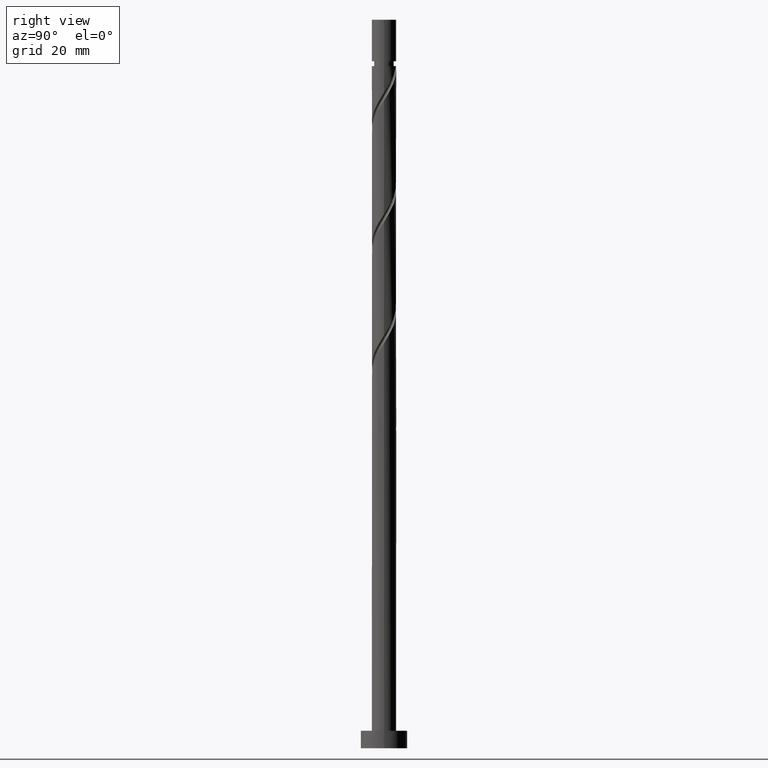
[diagram: clean part render]
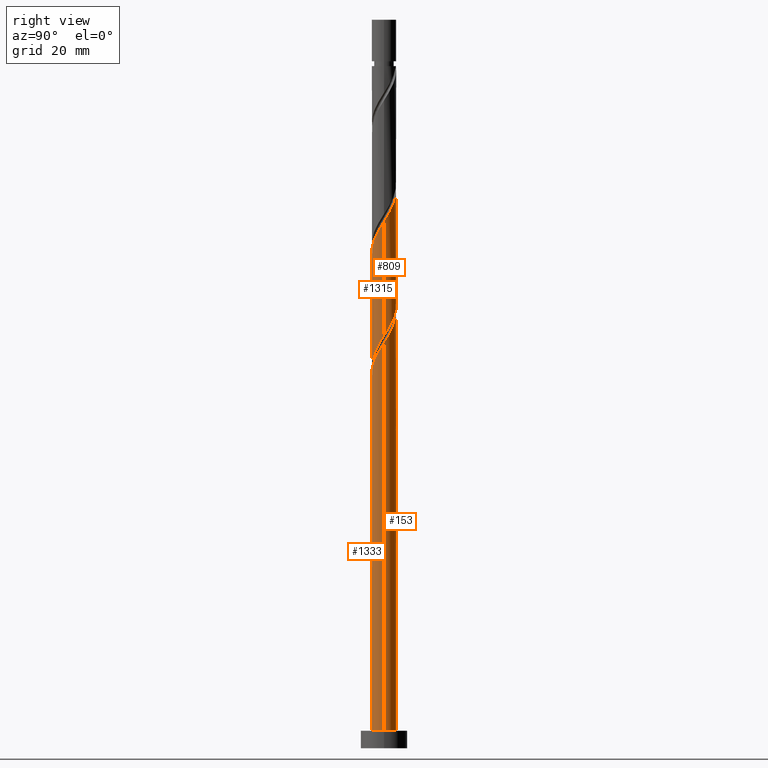
[diagram: same view with one multi-face feature highlighted, each face labeled with its STEP entity id]
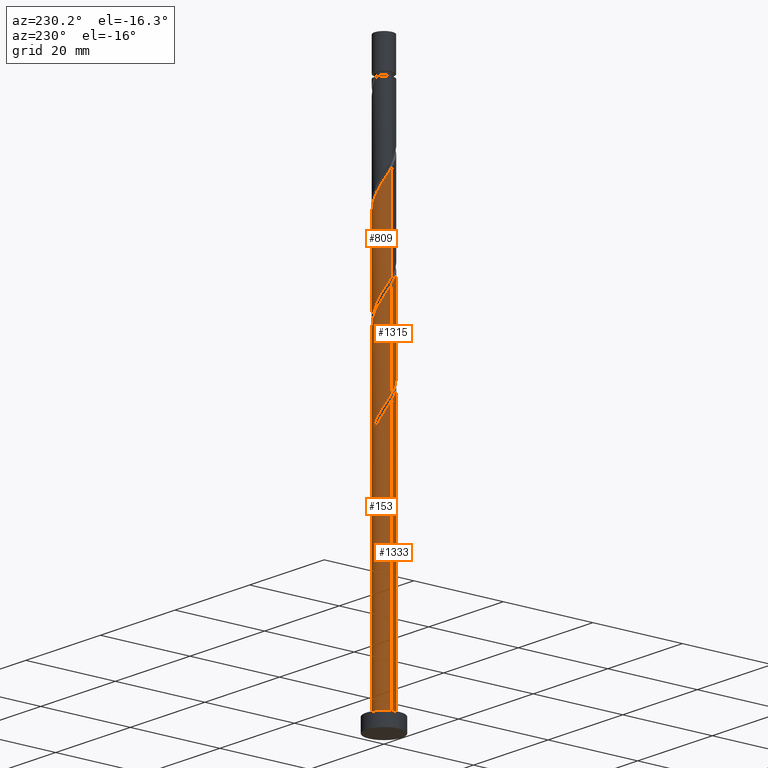
[diagram: same view with one multi-face feature highlighted, each face labeled with its STEP entity id]
A machine part, right view. The highlighted faces form ONE feature: a constant-radius fillet chain: 4 tangent blend faces with common blend radius 2.1 mm. The faces share edges in the B-rep.
A second angle (auxiliary view) of the same feature is appended — it is thin or edge-on in the first view.
Their STEP definitions:
[1] entity #1333 (Cylinder):
#13 = CARTESIAN_POINT ( 'NONE',  ( 2.048633742055939955, -0.5689704942628347473, 68.60996050600309104 ) ) ;
#81 = CARTESIAN_POINT ( 'NONE',  ( 2.100000000000000089, 2.571758278209441464E-16, 125.0000000000000000 ) ) ;
#96 = CARTESIAN_POINT ( 'NONE',  ( -0.8715781159782031162, -1.910589329957617766, 62.88079383933644095 ) ) ;
#133 = CYLINDRICAL_SURFACE ( 'NONE', #251, 2.100000000000000089 ) ;
#137 = CARTESIAN_POINT ( 'NONE',  ( 2.086410881982748045, -0.2385154744329752163, 69.13079383933644806 ) ) ;
#139 =( BOUNDED_CURVE ( )  B_SPLINE_CURVE ( 2, ( #457, #780, #1274, #225, #429, #527, #1258, #990, #96, #1418, #879, #1359, #303, #1251, #827, #1403, #770, #1260, #262, #13, #137, #1173, #196 ),
 .UNSPECIFIED., .F., .T. ) 
 B_SPLINE_CURVE_WITH_KNOTS ( ( 3, 2, 2, 2, 2, 2, 2, 2, 2, 2, 2, 3 ),
 ( 0.05453220231385526307, 0.06250000000000000000, 0.07499999999999995559, 0.08750000000000002220, 0.09999999999999997780, 0.1125000000000000444, 0.1250000000000000000, 0.1374999999999999556, 0.1500000000000000222, 0.1624999999999999778, 0.1750000000000000444, 0.1795322023138549994 ),
 .UNSPECIFIED. ) 
 CURVE ( )  GEOMETRIC_REPRESENTATION_ITEM ( )  RATIONAL_B_SPLINE_CURVE ( ( 0.9039174447099406207, 0.9019565955404700297, 0.9090909090909183865, 0.8978984914501343395, 0.9090909090909183865, 0.8978984914501343395, 0.9090909090909183865, 0.8978984914501343395, 0.9090909090909183865, 0.8978984914501343395, 0.9090909090909183865, 0.8978984914501343395, 0.9090909090909183865, 0.8978984914501343395, 0.9090909090909183865, 0.8978984914501343395, 0.9090909090909183865, 0.8978984914501343395, 0.9090909090909183865, 0.8978984914501343395, 0.9090909090909183865, 0.9050328050005829184, 0.9039174447099407317 ) ) 
 REPRESENTATION_ITEM ( '' )  );
#178 = CARTESIAN_POINT ( 'NONE',  ( 2.100000000000003197, 1.739199922851862487E-15, 69.50765806453284767 ) ) ;
#196 = CARTESIAN_POINT ( 'NONE',  ( 2.100000000000003197, 1.739199922851862487E-15, 69.50765806453286189 ) ) ;
#225 = CARTESIAN_POINT ( 'NONE',  ( -1.991811978090451074, -0.7438499017726768470, 60.27662717266978376 ) ) ;
#228 = CARTESIAN_POINT ( 'NONE',  ( 2.100000000000000089, 2.571758278209441464E-16, 3.000000000000000000 ) ) ;
#251 = AXIS2_PLACEMENT_3D ( 'NONE', #502, #1457, #846 ) ;
#262 = CARTESIAN_POINT ( 'NONE',  ( 1.910589329957617766, -0.8715781159782031162, 68.08912717266973402 ) ) ;
#303 = CARTESIAN_POINT ( 'NONE',  ( 0.4178947235847805808, -2.058000000000002938, 64.96412717266976244 ) ) ;
#339 = LINE ( 'NONE', #81, #1514 ) ;
#356 = ORIENTED_EDGE ( 'NONE', *, *, #1002, .T. ) ;
#429 = CARTESIAN_POINT ( 'NONE',  ( -1.828137739088110392, -1.033398474414310320, 60.79746050600309815 ) ) ;
#446 = CIRCLE ( 'NONE', #1321, 2.100000000000000089 ) ;
#453 = EDGE_CURVE ( 'NONE', #735, #483, #339, .T. ) ;
#455 = ORIENTED_EDGE ( 'NONE', *, *, #1450, .T. ) ;
#457 = CARTESIAN_POINT ( 'NONE',  ( -2.100000000000003197, -2.009075772949565392E-15, 59.09099139786618338 ) ) ;
#469 = DIRECTION ( 'NONE',  ( 0.000000000000000000, 0.000000000000000000, 1.000000000000000000 ) ) ;
#483 = VERTEX_POINT ( 'NONE', #228 ) ;
#502 = CARTESIAN_POINT ( 'NONE',  ( 0.000000000000000000, 0.000000000000000000, 125.0000000000000000 ) ) ;
#527 = CARTESIAN_POINT ( 'NONE',  ( -1.664463500085770375, -1.322947047055943903, 61.31829383933644806 ) ) ;
#668 = CARTESIAN_POINT ( 'NONE',  ( 0.000000000000000000, 0.000000000000000000, 3.000000000000000000 ) ) ;
#711 = CARTESIAN_POINT ( 'NONE',  ( -2.100000000000000089, 0.000000000000000000, 3.000000000000000000 ) ) ;
#735 = VERTEX_POINT ( 'NONE', #178 ) ;
#770 = CARTESIAN_POINT ( 'NONE',  ( 1.547745982457619851, -1.419324618889670875, 67.04746050600310525 ) ) ;
#780 = CARTESIAN_POINT ( 'NONE',  ( -2.100000000000002753, -0.2110579412044360781, 59.42529597327402513 ) ) ;
#796 = ORIENTED_EDGE ( 'NONE', *, *, #1398, .F. ) ;
#827 = CARTESIAN_POINT ( 'NONE',  ( 1.033398474414310098, -1.828137739088110392, 66.00579383933643385 ) ) ;
#834 = CARTESIAN_POINT ( 'NONE',  ( -2.100000000000003197, -2.009075772949565392E-15, 59.09099139786617627 ) ) ;
#846 = DIRECTION ( 'NONE',  ( -1.000000000000000000, 0.000000000000000000, 0.000000000000000000 ) ) ;
#879 = CARTESIAN_POINT ( 'NONE',  ( -0.2385154744329751331, -2.086410881982748045, 63.92246050600309815 ) ) ;
#884 = LINE ( 'NONE', #1346, #1394 ) ;
#990 = CARTESIAN_POINT ( 'NONE',  ( -1.174185737693571152, -1.772544917859296465, 62.35996050600311946 ) ) ;
#992 = DIRECTION ( 'NONE',  ( -0.000000000000000000, -0.000000000000000000, -1.000000000000000000 ) ) ;
#1002 = EDGE_CURVE ( 'NONE', #1082, #1178, #884, .T. ) ;
#1069 = EDGE_LOOP ( 'NONE', ( #1452, #796, #356, #455 ) ) ;
#1082 = VERTEX_POINT ( 'NONE', #834 ) ;
#1151 = DIRECTION ( 'NONE',  ( 1.000000000000000000, 0.000000000000000000, 0.000000000000000000 ) ) ;
#1173 = CARTESIAN_POINT ( 'NONE',  ( 2.100000000000002753, -0.1196448486375151915, 69.31814697532554703 ) ) ;
#1178 = VERTEX_POINT ( 'NONE', #711 ) ;
#1208 = FACE_OUTER_BOUND ( 'NONE', #1069, .T. ) ;
#1251 = CARTESIAN_POINT ( 'NONE',  ( 0.7438499017726768470, -1.991811978090451074, 65.48496050600310525 ) ) ;
#1258 = CARTESIAN_POINT ( 'NONE',  ( -1.419324618889670875, -1.547745982457619851, 61.83912717266976955 ) ) ;
#1260 = CARTESIAN_POINT ( 'NONE',  ( 1.772544917859296465, -1.174185737693571152, 67.56829383933644806 ) ) ;
#1274 = CARTESIAN_POINT ( 'NONE',  ( -2.058000000000002938, -0.4178947235847807473, 59.75579383933643385 ) ) ;
#1321 = AXIS2_PLACEMENT_3D ( 'NONE', #668, #469, #1151 ) ;
#1333 = ADVANCED_FACE ( 'NONE', ( #1208 ), #133, .T. ) ;
#1346 = CARTESIAN_POINT ( 'NONE',  ( -2.100000000000000089, 0.000000000000000000, 125.0000000000000000 ) ) ;
#1359 = CARTESIAN_POINT ( 'NONE',  ( 0.09193954539688437011, -2.124188021909556134, 64.44329383933643385 ) ) ;
#1380 = DIRECTION ( 'NONE',  ( -0.000000000000000000, -0.000000000000000000, -1.000000000000000000 ) ) ;
#1394 = VECTOR ( 'NONE', #992, 1000.000000000000000 ) ;
#1398 = EDGE_CURVE ( 'NONE', #1082, #735, #139, .T. ) ;
#1403 = CARTESIAN_POINT ( 'NONE',  ( 1.322947047055943903, -1.664463500085770375, 66.52662717266977666 ) ) ;
#1418 = CARTESIAN_POINT ( 'NONE',  ( -0.5689704942628346362, -2.048633742055939955, 63.40162717266978376 ) ) ;
#1450 = EDGE_CURVE ( 'NONE', #1178, #483, #446, .T. ) ;
#1452 = ORIENTED_EDGE ( 'NONE', *, *, #453, .F. ) ;
#1457 = DIRECTION ( 'NONE',  ( -0.000000000000000000, -0.000000000000000000, -1.000000000000000000 ) ) ;
#1514 = VECTOR ( 'NONE', #1380, 1000.000000000000000 ) ;
[2] entity #153 (Cylinder):
#2 = CARTESIAN_POINT ( 'NONE',  ( 0.4178947235847812469, 2.058000000000001162, 54.54746050600310525 ) ) ;
#15 = ORIENTED_EDGE ( 'NONE', *, *, #1191, .T. ) ;
#18 = CARTESIAN_POINT ( 'NONE',  ( 0.4178947235847811914, 2.058000000000001162, 54.54746050600310525 ) ) ;
#58 = CARTESIAN_POINT ( 'NONE',  ( 0.000000000000000000, 0.000000000000000000, 54.54746050600311946 ) ) ;
#75 = CARTESIAN_POINT ( 'NONE',  ( -1.322947047055943903, 1.664463500085770375, 76.94329383933644806 ) ) ;
#81 = CARTESIAN_POINT ( 'NONE',  ( 2.100000000000000089, 2.571758278209441464E-16, 125.0000000000000000 ) ) ;
#83 = CARTESIAN_POINT ( 'NONE',  ( -2.100000000000000977, 2.488855062012162183E-15, 60.42059628080669853 ) ) ;
#85 = CARTESIAN_POINT ( 'NONE',  ( -2.048633742055939955, 0.5689704942628345252, 79.02662717266977666 ) ) ;
#113 = CARTESIAN_POINT ( 'NONE',  ( -0.2385154744329744114, 2.086410881982745380, 55.58912717266977666 ) ) ;
#122 = CARTESIAN_POINT ( 'NONE',  ( -1.174185737693569154, 1.772544917859294911, 57.15162717266978376 ) ) ;
#128 = CARTESIAN_POINT ( 'NONE',  ( 1.828137739088110392, 1.033398474414310098, 71.21412717266977666 ) ) ;
#153 = ADVANCED_FACE ( 'NONE', ( #340 ), #1149, .T. ) ;
#178 = CARTESIAN_POINT ( 'NONE',  ( 2.100000000000003197, 1.739199922851862487E-15, 69.50765806453284767 ) ) ;
#199 = EDGE_CURVE ( 'NONE', #447, #1040, #355, .T. ) ;
#207 = CARTESIAN_POINT ( 'NONE',  ( 0.000000000000000000, 0.000000000000000000, 3.000000000000000000 ) ) ;
#216 = VERTEX_POINT ( 'NONE', #492 ) ;
#228 = CARTESIAN_POINT ( 'NONE',  ( 2.100000000000000089, 2.571758278209441464E-16, 3.000000000000000000 ) ) ;
#235 = DIRECTION ( 'NONE',  ( 0.000000000000000000, 0.000000000000000000, 1.000000000000000000 ) ) ;
#252 = CARTESIAN_POINT ( 'NONE',  ( 2.100000000000004086, 0.2110579412044288894, 69.84196263994067522 ) ) ;
#283 = CARTESIAN_POINT ( 'NONE',  ( -2.100000000000000977, 2.488855062012162183E-15, 60.42059628080669853 ) ) ;
#332 = DIRECTION ( 'NONE',  ( -1.000000000000000000, 0.000000000000000000, 0.000000000000000000 ) ) ;
#339 = LINE ( 'NONE', #81, #1514 ) ;
#340 = FACE_OUTER_BOUND ( 'NONE', #548, .T. ) ;
#355 =( BOUNDED_CURVE ( )  B_SPLINE_CURVE ( 2, ( #83, #912, #947, #1404, #1532, #1438, #794, #122, #444, #1281, #113, #593, #2 ),
 .UNSPECIFIED., .F., .T. ) 
 B_SPLINE_CURVE_WITH_KNOTS ( ( 3, 2, 2, 2, 2, 2, 3 ),
 ( 0.9295322023138553602, 0.9375000000000000000, 0.9499999999999999556, 0.9625000000000000222, 0.9749999999999999778, 0.9875000000000000444, 1.000000000000000000 ),
 .UNSPECIFIED. ) 
 CURVE ( )  GEOMETRIC_REPRESENTATION_ITEM ( )  RATIONAL_B_SPLINE_CURVE ( ( 0.9039174447099352916, 0.9019565955404648117, 0.9090909090909131685, 0.8978984914501292325, 0.9090909090909131685, 0.8978984914501292325, 0.9090909090909131685, 0.8978984914501292325, 0.9090909090909131685, 0.8978984914501292325, 0.9090909090909131685, 0.8978984914501292325, 0.9090909090909131685 ) ) 
 REPRESENTATION_ITEM ( '' )  );
#370 = ORIENTED_EDGE ( 'NONE', *, *, #1558, .F. ) ;
#382 = CARTESIAN_POINT ( 'NONE',  ( -2.086410881982748045, 0.2385154744329750776, 58.71412717266976244 ) ) ;
#436 = ORIENTED_EDGE ( 'NONE', *, *, #1002, .F. ) ;
#440 = CARTESIAN_POINT ( 'NONE',  ( -1.033398474414310542, 1.828137739088110392, 76.42246050600309104 ) ) ;
#444 = CARTESIAN_POINT ( 'NONE',  ( -0.8715781159782016729, 1.910589329957616211, 56.63079383933643385 ) ) ;
#447 = VERTEX_POINT ( 'NONE', #283 ) ;
#453 = EDGE_CURVE ( 'NONE', #735, #483, #339, .T. ) ;
#454 = CARTESIAN_POINT ( 'NONE',  ( -2.100000000000003197, -2.009075772949565392E-15, 79.92432473119949066 ) ) ;
#464 = CARTESIAN_POINT ( 'NONE',  ( 1.419324618889671097, 1.547745982457619851, 72.25579383933643385 ) ) ;
#477 = CARTESIAN_POINT ( 'NONE',  ( 0.2385154744329754384, 2.086410881982748045, 74.33912717266977666 ) ) ;
#483 = VERTEX_POINT ( 'NONE', #228 ) ;
#492 = CARTESIAN_POINT ( 'NONE',  ( -0.4178947235847804698, 2.058000000000002938, 54.54746050600310525 ) ) ;
#518 = CARTESIAN_POINT ( 'NONE',  ( -0.7438499017726771800, 1.991811978090451074, 55.06829383933644806 ) ) ;
#537 = CARTESIAN_POINT ( 'NONE',  ( -1.772544917859296909, 1.174185737693571152, 57.15162717266976955 ) ) ;
#548 = EDGE_LOOP ( 'NONE', ( #1283, #656, #15, #436, #686, #592, #1526, #370 ) ) ;
#562 = CARTESIAN_POINT ( 'NONE',  ( -2.086410881982748045, 0.2385154744329750776, 79.54746050600310525 ) ) ;
#592 = ORIENTED_EDGE ( 'NONE', *, *, #863, .T. ) ;
#593 = CARTESIAN_POINT ( 'NONE',  ( 0.09193954539688486971, 2.124188021909553026, 55.06829383933644806 ) ) ;
#638 = DIRECTION ( 'NONE',  ( 0.000000000000000000, -8.260587980841937794E-15, -1.000000000000000000 ) ) ;
#656 = ORIENTED_EDGE ( 'NONE', *, *, #453, .T. ) ;
#675 = DIRECTION ( 'NONE',  ( 1.000000000000000000, 0.000000000000000000, 0.000000000000000000 ) ) ;
#680 = CIRCLE ( 'NONE', #960, 2.100000000000000089 ) ;
#686 = ORIENTED_EDGE ( 'NONE', *, *, #1028, .F. ) ;
#697 = CARTESIAN_POINT ( 'NONE',  ( 0.8715781159782032272, 1.910589329957617766, 73.29746050600310525 ) ) ;
#711 = CARTESIAN_POINT ( 'NONE',  ( -2.100000000000000089, 0.000000000000000000, 3.000000000000000000 ) ) ;
#735 = VERTEX_POINT ( 'NONE', #178 ) ;
#779 = CIRCLE ( 'NONE', #1094, 2.100000000000000089 ) ;
#794 = CARTESIAN_POINT ( 'NONE',  ( -1.419324618889668654, 1.547745982457618963, 57.67246050600311236 ) ) ;
#834 = CARTESIAN_POINT ( 'NONE',  ( -2.100000000000003197, -2.009075772949565392E-15, 59.09099139786617627 ) ) ;
#863 = EDGE_CURVE ( 'NONE', #216, #1040, #779, .T. ) ;
#877 =( BOUNDED_CURVE ( )  B_SPLINE_CURVE ( 2, ( #1353, #518, #983, #1074, #1368, #537, #1442, #1462, #382, #1237, #1574 ),
 .UNSPECIFIED., .F., .T. ) 
 B_SPLINE_CURVE_WITH_KNOTS ( ( 3, 2, 2, 2, 2, 3 ),
 ( 0.000000000000000000, 0.01249999999999995559, 0.02500000000000002220, 0.03749999999999997780, 0.05000000000000004441, 0.05453220231385526307 ),
 .UNSPECIFIED. ) 
 CURVE ( )  GEOMETRIC_REPRESENTATION_ITEM ( )  RATIONAL_B_SPLINE_CURVE ( ( 0.9090909090909183865, 0.8978984914501343395, 0.9090909090909183865, 0.8978984914501343395, 0.9090909090909183865, 0.8978984914501343395, 0.9090909090909183865, 0.8978984914501343395, 0.9090909090909183865, 0.9050328050005826963, 0.9039174447099406207 ) ) 
 REPRESENTATION_ITEM ( '' )  );
#880 = DIRECTION ( 'NONE',  ( 0.000000000000000000, 1.000000000000000000, -6.608470384673550235E-15 ) ) ;
#884 = LINE ( 'NONE', #1346, #1394 ) ;
#902 = CARTESIAN_POINT ( 'NONE',  ( -1.547745982457620295, 1.419324618889670653, 77.46412717266977666 ) ) ;
#911 =( BOUNDED_CURVE ( )  B_SPLINE_CURVE ( 2, ( #1437, #252, #952, #1204, #128, #1084, #464, #1417, #697, #1060, #477, #1427, #925, #1156, #440, #75, #902, #915, #1282, #85, #562, #1039, #454 ),
 .UNSPECIFIED., .F., .T. ) 
 B_SPLINE_CURVE_WITH_KNOTS ( ( 3, 2, 2, 2, 2, 2, 2, 2, 2, 2, 2, 3 ),
 ( 0.1795322023138549994, 0.1875000000000000000, 0.1999999999999999556, 0.2125000000000000222, 0.2249999999999999778, 0.2375000000000000444, 0.2500000000000000000, 0.2624999999999999556, 0.2750000000000000222, 0.2874999999999999778, 0.3000000000000000444, 0.3045322023138549161 ),
 .UNSPECIFIED. ) 
 CURVE ( )  GEOMETRIC_REPRESENTATION_ITEM ( )  RATIONAL_B_SPLINE_CURVE ( ( 0.9039174447099407317, 0.9019565955404696966, 0.9090909090909183865, 0.8978984914501343395, 0.9090909090909183865, 0.8978984914501343395, 0.9090909090909183865, 0.8978984914501343395, 0.9090909090909183865, 0.8978984914501343395, 0.9090909090909183865, 0.8978984914501343395, 0.9090909090909183865, 0.8978984914501343395, 0.9090909090909183865, 0.8978984914501343395, 0.9090909090909183865, 0.8978984914501343395, 0.9090909090909183865, 0.8978984914501343395, 0.9090909090909183865, 0.9050328050005829184, 0.9039174447099406207 ) ) 
 REPRESENTATION_ITEM ( '' )  );
#912 = CARTESIAN_POINT ( 'NONE',  ( -2.100000000000000089, 0.2110579412044388814, 60.08629170539884967 ) ) ;
#915 = CARTESIAN_POINT ( 'NONE',  ( -1.772544917859296909, 1.174185737693571152, 77.98496050600311946 ) ) ;
#925 = CARTESIAN_POINT ( 'NONE',  ( -0.4178947235847803587, 2.058000000000002938, 75.38079383933643385 ) ) ;
#947 = CARTESIAN_POINT ( 'NONE',  ( -2.058000000000001162, 0.4178947235847807473, 59.75579383933643385 ) ) ;
#952 = CARTESIAN_POINT ( 'NONE',  ( 2.058000000000002938, 0.4178947235847805253, 70.17246050600310525 ) ) ;
#960 = AXIS2_PLACEMENT_3D ( 'NONE', #207, #235, #675 ) ;
#983 = CARTESIAN_POINT ( 'NONE',  ( -1.033398474414310542, 1.828137739088110392, 55.58912717266976955 ) ) ;
#992 = DIRECTION ( 'NONE',  ( -0.000000000000000000, -0.000000000000000000, -1.000000000000000000 ) ) ;
#1002 = EDGE_CURVE ( 'NONE', #1082, #1178, #884, .T. ) ;
#1022 = LINE ( 'NONE', #1180, #1373 ) ;
#1028 = EDGE_CURVE ( 'NONE', #216, #1082, #877, .T. ) ;
#1031 = VERTEX_POINT ( 'NONE', #1331 ) ;
#1039 = CARTESIAN_POINT ( 'NONE',  ( -2.100000000000002753, 0.1196448486375171760, 79.73481364199223265 ) ) ;
#1040 = VERTEX_POINT ( 'NONE', #18 ) ;
#1060 = CARTESIAN_POINT ( 'NONE',  ( 0.5689704942628347473, 2.048633742055939955, 73.81829383933643385 ) ) ;
#1074 = CARTESIAN_POINT ( 'NONE',  ( -1.322947047055943903, 1.664463500085770375, 56.10996050600311236 ) ) ;
#1082 = VERTEX_POINT ( 'NONE', #834 ) ;
#1084 = CARTESIAN_POINT ( 'NONE',  ( 1.664463500085770820, 1.322947047055943903, 71.73496050600310525 ) ) ;
#1094 = AXIS2_PLACEMENT_3D ( 'NONE', #58, #638, #880 ) ;
#1149 = CYLINDRICAL_SURFACE ( 'NONE', #1299, 2.100000000000000089 ) ;
#1156 = CARTESIAN_POINT ( 'NONE',  ( -0.7438499017726771800, 1.991811978090451074, 75.90162717266977666 ) ) ;
#1178 = VERTEX_POINT ( 'NONE', #711 ) ;
#1180 = CARTESIAN_POINT ( 'NONE',  ( -2.100000000000000089, 0.000000000000000000, 125.0000000000000000 ) ) ;
#1186 = DIRECTION ( 'NONE',  ( -0.000000000000000000, -0.000000000000000000, -1.000000000000000000 ) ) ;
#1191 = EDGE_CURVE ( 'NONE', #483, #1178, #680, .T. ) ;
#1204 = CARTESIAN_POINT ( 'NONE',  ( 1.991811978090451074, 0.7438499017726767359, 70.69329383933641964 ) ) ;
#1237 = CARTESIAN_POINT ( 'NONE',  ( -2.100000000000003642, 0.1196448486375080167, 58.90148030865890405 ) ) ;
#1281 = CARTESIAN_POINT ( 'NONE',  ( -0.5689704942628336370, 2.048633742055936846, 56.10996050600311946 ) ) ;
#1282 = CARTESIAN_POINT ( 'NONE',  ( -1.910589329957617988, 0.8715781159782027832, 78.50579383933640543 ) ) ;
#1283 = ORIENTED_EDGE ( 'NONE', *, *, #1383, .F. ) ;
#1299 = AXIS2_PLACEMENT_3D ( 'NONE', #1395, #1186, #332 ) ;
#1331 = CARTESIAN_POINT ( 'NONE',  ( -2.100000000000003197, -2.009075772949565392E-15, 79.92432473119949066 ) ) ;
#1346 = CARTESIAN_POINT ( 'NONE',  ( -2.100000000000000089, 0.000000000000000000, 125.0000000000000000 ) ) ;
#1353 = CARTESIAN_POINT ( 'NONE',  ( -0.4178947235847805253, 2.058000000000002938, 54.54746050600310525 ) ) ;
#1368 = CARTESIAN_POINT ( 'NONE',  ( -1.547745982457620295, 1.419324618889670653, 56.63079383933644095 ) ) ;
#1373 = VECTOR ( 'NONE', #1421, 1000.000000000000000 ) ;
#1380 = DIRECTION ( 'NONE',  ( -0.000000000000000000, -0.000000000000000000, -1.000000000000000000 ) ) ;
#1383 = EDGE_CURVE ( 'NONE', #735, #1031, #911, .T. ) ;
#1394 = VECTOR ( 'NONE', #992, 1000.000000000000000 ) ;
#1395 = CARTESIAN_POINT ( 'NONE',  ( 0.000000000000000000, 0.000000000000000000, 125.0000000000000000 ) ) ;
#1404 = CARTESIAN_POINT ( 'NONE',  ( -1.991811978090448854, 0.7438499017726766249, 59.23496050600311236 ) ) ;
#1417 = CARTESIAN_POINT ( 'NONE',  ( 1.174185737693571596, 1.772544917859296243, 72.77662717266979087 ) ) ;
#1421 = DIRECTION ( 'NONE',  ( -0.000000000000000000, -0.000000000000000000, -1.000000000000000000 ) ) ;
#1427 = CARTESIAN_POINT ( 'NONE',  ( -0.09193954539688416194, 2.124188021909556134, 74.85996050600311946 ) ) ;
#1437 = CARTESIAN_POINT ( 'NONE',  ( 2.100000000000003197, 1.739199922851862487E-15, 69.50765806453286189 ) ) ;
#1438 = CARTESIAN_POINT ( 'NONE',  ( -1.664463500085768377, 1.322947047055943015, 58.19329383933645516 ) ) ;
#1442 = CARTESIAN_POINT ( 'NONE',  ( -1.910589329957617988, 0.8715781159782027832, 57.67246050600309815 ) ) ;
#1462 = CARTESIAN_POINT ( 'NONE',  ( -2.048633742055939955, 0.5689704942628345252, 58.19329383933644806 ) ) ;
#1514 = VECTOR ( 'NONE', #1380, 1000.000000000000000 ) ;
#1526 = ORIENTED_EDGE ( 'NONE', *, *, #199, .F. ) ;
#1532 = CARTESIAN_POINT ( 'NONE',  ( -1.828137739088108171, 1.033398474414309876, 58.71412717266977666 ) ) ;
#1558 = EDGE_CURVE ( 'NONE', #1031, #447, #1022, .T. ) ;
#1574 = CARTESIAN_POINT ( 'NONE',  ( -2.100000000000003197, -2.009075772949565392E-15, 59.09099139786618338 ) ) ;
[3] entity #1315 (Cylinder):
#5 = DIRECTION ( 'NONE',  ( -1.000000000000000000, 0.000000000000000000, 0.000000000000000000 ) ) ;
#31 = DIRECTION ( 'NONE',  ( -0.000000000000000000, -0.000000000000000000, -1.000000000000000000 ) ) ;
#37 = CARTESIAN_POINT ( 'NONE',  ( -0.4178947235847808583, -2.058000000000001162, 64.96412717266977666 ) ) ;
#47 = CARTESIAN_POINT ( 'NONE',  ( -1.174185737693571152, -1.772544917859296465, 83.19329383933643385 ) ) ;
#92 = ORIENTED_EDGE ( 'NONE', *, *, #1010, .F. ) ;
#184 = CARTESIAN_POINT ( 'NONE',  ( 1.991811978090447965, -0.7438499017726767359, 69.65162717266977666 ) ) ;
#187 = CARTESIAN_POINT ( 'NONE',  ( 0.09193954539688437011, -2.124188021909556134, 85.27662717266976244 ) ) ;
#240 = ORIENTED_EDGE ( 'NONE', *, *, #1558, .T. ) ;
#283 = CARTESIAN_POINT ( 'NONE',  ( -2.100000000000000977, 2.488855062012162183E-15, 60.42059628080669853 ) ) ;
#297 = CARTESIAN_POINT ( 'NONE',  ( 2.048633742055939955, -0.5689704942628347473, 89.44329383933643385 ) ) ;
#404 = CARTESIAN_POINT ( 'NONE',  ( 0.2385154744329740506, -2.086410881982745380, 66.00579383933643385 ) ) ;
#409 = EDGE_CURVE ( 'NONE', #1031, #1194, #1043, .T. ) ;
#414 = CARTESIAN_POINT ( 'NONE',  ( 1.033398474414310098, -1.828137739088110392, 86.83912717266976244 ) ) ;
#428 = CARTESIAN_POINT ( 'NONE',  ( 1.174185737693569154, -1.772544917859294911, 67.56829383933643385 ) ) ;
#435 = CARTESIAN_POINT ( 'NONE',  ( 2.086410881982748045, -0.2385154744329752163, 89.96412717266977666 ) ) ;
#447 = VERTEX_POINT ( 'NONE', #283 ) ;
#540 = CARTESIAN_POINT ( 'NONE',  ( 2.100000000000003197, 1.739199922851862487E-15, 90.34099139786616206 ) ) ;
#547 = CARTESIAN_POINT ( 'NONE',  ( -0.7438499017726766249, -1.991811978090447965, 64.44329383933644806 ) ) ;
#552 = CARTESIAN_POINT ( 'NONE',  ( -2.100000000000001421, -0.1196448486375048387, 60.61010737001397075 ) ) ;
#563 = CARTESIAN_POINT ( 'NONE',  ( 2.100000000000003197, 1.739199922851862487E-15, 90.34099139786616206 ) ) ;
#626 = CARTESIAN_POINT ( 'NONE',  ( 0.4178947235847805808, -2.058000000000002938, 85.79746050600309104 ) ) ;
#628 = CARTESIAN_POINT ( 'NONE',  ( 1.664463500085768155, -1.322947047055943237, 68.60996050600310525 ) ) ;
#629 = CARTESIAN_POINT ( 'NONE',  ( 2.100000000000000089, 2.571758278209441464E-16, 125.0000000000000000 ) ) ;
#634 = AXIS2_PLACEMENT_3D ( 'NONE', #989, #1487, #5 ) ;
#641 = CARTESIAN_POINT ( 'NONE',  ( 2.100000000000003197, -0.1196448486375115278, 90.15148030865888984 ) ) ;
#650 = EDGE_CURVE ( 'NONE', #812, #447, #660, .T. ) ;
#660 =( BOUNDED_CURVE ( )  B_SPLINE_CURVE ( 2, ( #1379, #1257, #756, #184, #1016, #628, #1515, #428, #1105, #980, #404, #1513, #37, #547, #1546, #1388, #892, #1148, #778, #1154, #1271, #552, #1530 ),
 .UNSPECIFIED., .F., .T. ) 
 B_SPLINE_CURVE_WITH_KNOTS ( ( 3, 2, 2, 2, 2, 2, 2, 2, 2, 2, 2, 3 ),
 ( 0.8045322023138552492, 0.8125000000000000000, 0.8249999999999999556, 0.8375000000000000222, 0.8499999999999999778, 0.8625000000000000444, 0.8750000000000000000, 0.8874999999999999556, 0.9000000000000000222, 0.9124999999999999778, 0.9250000000000000444, 0.9295322023138553602 ),
 .UNSPECIFIED. ) 
 CURVE ( )  GEOMETRIC_REPRESENTATION_ITEM ( )  RATIONAL_B_SPLINE_CURVE ( ( 0.9039174447099354026, 0.9019565955404647006, 0.9090909090909131685, 0.8978984914501292325, 0.9090909090909131685, 0.8978984914501292325, 0.9090909090909131685, 0.8978984914501292325, 0.9090909090909131685, 0.8978984914501292325, 0.9090909090909131685, 0.8978984914501292325, 0.9090909090909131685, 0.8978984914501292325, 0.9090909090909131685, 0.8978984914501292325, 0.9090909090909131685, 0.8978984914501292325, 0.9090909090909131685, 0.8978984914501292325, 0.9090909090909131685, 0.9050328050005773672, 0.9039174447099352916 ) ) 
 REPRESENTATION_ITEM ( '' )  );
#733 = EDGE_LOOP ( 'NONE', ( #92, #847, #240, #937 ) ) ;
#748 = CYLINDRICAL_SURFACE ( 'NONE', #634, 2.100000000000000089 ) ;
#756 = CARTESIAN_POINT ( 'NONE',  ( 2.058000000000001162, -0.4178947235847809694, 70.17246050600309104 ) ) ;
#769 = CARTESIAN_POINT ( 'NONE',  ( -0.8715781159782031162, -1.910589329957617766, 83.71412717266976244 ) ) ;
#778 = CARTESIAN_POINT ( 'NONE',  ( -1.910589329957616211, -0.8715781159782014509, 61.83912717266977666 ) ) ;
#812 = VERTEX_POINT ( 'NONE', #1113 ) ;
#847 = ORIENTED_EDGE ( 'NONE', *, *, #409, .F. ) ;
#876 = CARTESIAN_POINT ( 'NONE',  ( -0.5689704942628346362, -2.048633742055939955, 84.23496050600310525 ) ) ;
#892 = CARTESIAN_POINT ( 'NONE',  ( -1.547745982457618963, -1.419324618889668210, 62.88079383933644095 ) ) ;
#897 = CARTESIAN_POINT ( 'NONE',  ( 0.7438499017726768470, -1.991811978090451074, 86.31829383933644806 ) ) ;
#937 = ORIENTED_EDGE ( 'NONE', *, *, #650, .F. ) ;
#980 = CARTESIAN_POINT ( 'NONE',  ( 0.5689704942628334150, -2.048633742055936846, 66.52662717266979087 ) ) ;
#989 = CARTESIAN_POINT ( 'NONE',  ( 0.000000000000000000, 0.000000000000000000, 125.0000000000000000 ) ) ;
#999 = CARTESIAN_POINT ( 'NONE',  ( -0.2385154744329751331, -2.086410881982748045, 84.75579383933643385 ) ) ;
#1010 = EDGE_CURVE ( 'NONE', #1194, #812, #1224, .T. ) ;
#1016 = CARTESIAN_POINT ( 'NONE',  ( 1.828137739088108171, -1.033398474414309876, 69.13079383933644806 ) ) ;
#1019 = CARTESIAN_POINT ( 'NONE',  ( 1.322947047055943903, -1.664463500085770375, 87.35996050600311946 ) ) ;
#1022 = LINE ( 'NONE', #1180, #1373 ) ;
#1031 = VERTEX_POINT ( 'NONE', #1331 ) ;
#1043 =( BOUNDED_CURVE ( )  B_SPLINE_CURVE ( 2, ( #1377, #1502, #1119, #1483, #1356, #1227, #1522, #47, #769, #876, #999, #187, #626, #897, #414, #1019, #1245, #1364, #1132, #297, #435, #641, #540 ),
 .UNSPECIFIED., .F., .T. ) 
 B_SPLINE_CURVE_WITH_KNOTS ( ( 3, 2, 2, 2, 2, 2, 2, 2, 2, 2, 2, 3 ),
 ( 0.3045322023138549161, 0.3125000000000000000, 0.3249999999999999556, 0.3375000000000000222, 0.3499999999999999778, 0.3625000000000000444, 0.3750000000000000000, 0.3874999999999999556, 0.4000000000000000222, 0.4124999999999999778, 0.4250000000000000444, 0.4295322023138551382 ),
 .UNSPECIFIED. ) 
 CURVE ( )  GEOMETRIC_REPRESENTATION_ITEM ( )  RATIONAL_B_SPLINE_CURVE ( ( 0.9039174447099406207, 0.9019565955404695856, 0.9090909090909183865, 0.8978984914501343395, 0.9090909090909183865, 0.8978984914501343395, 0.9090909090909183865, 0.8978984914501343395, 0.9090909090909183865, 0.8978984914501343395, 0.9090909090909183865, 0.8978984914501343395, 0.9090909090909183865, 0.8978984914501343395, 0.9090909090909183865, 0.8978984914501343395, 0.9090909090909183865, 0.8978984914501343395, 0.9090909090909183865, 0.8978984914501343395, 0.9090909090909183865, 0.9050328050005828073, 0.9039174447099406207 ) ) 
 REPRESENTATION_ITEM ( '' )  );
#1105 = CARTESIAN_POINT ( 'NONE',  ( 0.8715781159782014509, -1.910589329957616211, 67.04746050600310525 ) ) ;
#1113 = CARTESIAN_POINT ( 'NONE',  ( 2.100000000000000533, 3.088579173340394367E-15, 70.83726294747339125 ) ) ;
#1119 = CARTESIAN_POINT ( 'NONE',  ( -2.058000000000002938, -0.4178947235847807473, 80.58912717266976244 ) ) ;
#1132 = CARTESIAN_POINT ( 'NONE',  ( 1.910589329957617766, -0.8715781159782031162, 88.92246050600307683 ) ) ;
#1148 = CARTESIAN_POINT ( 'NONE',  ( -1.772544917859294911, -1.174185737693569154, 62.35996050600311946 ) ) ;
#1154 = CARTESIAN_POINT ( 'NONE',  ( -2.048633742055936846, -0.5689704942628336370, 61.31829383933644095 ) ) ;
#1180 = CARTESIAN_POINT ( 'NONE',  ( -2.100000000000000089, 0.000000000000000000, 125.0000000000000000 ) ) ;
#1194 = VERTEX_POINT ( 'NONE', #563 ) ;
#1224 = LINE ( 'NONE', #629, #1370 ) ;
#1227 = CARTESIAN_POINT ( 'NONE',  ( -1.664463500085770375, -1.322947047055943903, 82.15162717266977666 ) ) ;
#1245 = CARTESIAN_POINT ( 'NONE',  ( 1.547745982457619851, -1.419324618889670875, 87.88079383933643385 ) ) ;
#1257 = CARTESIAN_POINT ( 'NONE',  ( 2.100000000000000533, -0.2110579412044362446, 70.50295837206553529 ) ) ;
#1271 = CARTESIAN_POINT ( 'NONE',  ( -2.086410881982745380, -0.2385154744329742726, 60.79746050600309815 ) ) ;
#1315 = ADVANCED_FACE ( 'NONE', ( #1343 ), #748, .T. ) ;
#1331 = CARTESIAN_POINT ( 'NONE',  ( -2.100000000000003197, -2.009075772949565392E-15, 79.92432473119949066 ) ) ;
#1343 = FACE_OUTER_BOUND ( 'NONE', #733, .T. ) ;
#1356 = CARTESIAN_POINT ( 'NONE',  ( -1.828137739088110392, -1.033398474414310320, 81.63079383933643385 ) ) ;
#1364 = CARTESIAN_POINT ( 'NONE',  ( 1.772544917859296465, -1.174185737693571152, 88.40162717266977666 ) ) ;
#1370 = VECTOR ( 'NONE', #31, 1000.000000000000000 ) ;
#1373 = VECTOR ( 'NONE', #1421, 1000.000000000000000 ) ;
#1377 = CARTESIAN_POINT ( 'NONE',  ( -2.100000000000003197, -2.009075772949565392E-15, 79.92432473119949066 ) ) ;
#1379 = CARTESIAN_POINT ( 'NONE',  ( 2.100000000000000533, 3.088579173340394367E-15, 70.83726294747339125 ) ) ;
#1388 = CARTESIAN_POINT ( 'NONE',  ( -1.322947047055943015, -1.664463500085768377, 63.40162717266979087 ) ) ;
#1421 = DIRECTION ( 'NONE',  ( -0.000000000000000000, -0.000000000000000000, -1.000000000000000000 ) ) ;
#1483 = CARTESIAN_POINT ( 'NONE',  ( -1.991811978090451074, -0.7438499017726768470, 81.10996050600311946 ) ) ;
#1487 = DIRECTION ( 'NONE',  ( -0.000000000000000000, -0.000000000000000000, -1.000000000000000000 ) ) ;
#1502 = CARTESIAN_POINT ( 'NONE',  ( -2.100000000000004974, -0.2110579412044270020, 80.25862930660733241 ) ) ;
#1513 = CARTESIAN_POINT ( 'NONE',  ( -0.09193954539688516114, -2.124188021909553026, 65.48496050600311946 ) ) ;
#1515 = CARTESIAN_POINT ( 'NONE',  ( 1.419324618889668210, -1.547745982457618963, 68.08912717266976244 ) ) ;
#1522 = CARTESIAN_POINT ( 'NONE',  ( -1.419324618889670875, -1.547745982457619851, 82.67246050600310525 ) ) ;
#1530 = CARTESIAN_POINT ( 'NONE',  ( -2.100000000000000977, 2.488855062012162183E-15, 60.42059628080669853 ) ) ;
#1546 = CARTESIAN_POINT ( 'NONE',  ( -1.033398474414309876, -1.828137739088108171, 63.92246050600312657 ) ) ;
#1558 = EDGE_CURVE ( 'NONE', #1031, #447, #1022, .T. ) ;
[4] entity #809 (Cylinder):
#23 = CARTESIAN_POINT ( 'NONE',  ( -0.4178947235847803587, 2.058000000000002938, 96.21412717266976244 ) ) ;
#26 = LINE ( 'NONE', #522, #299 ) ;
#31 = DIRECTION ( 'NONE',  ( -0.000000000000000000, -0.000000000000000000, -1.000000000000000000 ) ) ;
#41 = CARTESIAN_POINT ( 'NONE',  ( -2.048633742055939955, 0.5689704942628345252, 99.85996050600307683 ) ) ;
#73 = CARTESIAN_POINT ( 'NONE',  ( -2.100000000000003197, 0.1196448486375112918, 100.5681469753255470 ) ) ;
#80 = EDGE_CURVE ( 'NONE', #1194, #1189, #398, .T. ) ;
#95 = CARTESIAN_POINT ( 'NONE',  ( -2.058000000000001162, 0.4178947235847807473, 80.58912717266976244 ) ) ;
#110 = CARTESIAN_POINT ( 'NONE',  ( 1.910589329957616211, 0.8715781159782010068, 72.25579383933643385 ) ) ;
#119 = CARTESIAN_POINT ( 'NONE',  ( 2.100000000000000533, 3.088579173340394367E-15, 70.83726294747339125 ) ) ;
#135 = CARTESIAN_POINT ( 'NONE',  ( 1.174185737693571596, 1.772544917859296243, 93.60996050600310525 ) ) ;
#159 = CARTESIAN_POINT ( 'NONE',  ( -1.910589329957617988, 0.8715781159782027832, 99.33912717266973402 ) ) ;
#163 = DIRECTION ( 'NONE',  ( -0.000000000000000000, -0.000000000000000000, -1.000000000000000000 ) ) ;
#239 = CARTESIAN_POINT ( 'NONE',  ( 0.7438499017726769580, 1.991811978090447521, 74.85996050600310525 ) ) ;
#249 = CARTESIAN_POINT ( 'NONE',  ( -1.664463500085768377, 1.322947047055943015, 79.02662717266977666 ) ) ;
#265 = CARTESIAN_POINT ( 'NONE',  ( 1.828137739088110392, 1.033398474414310098, 92.04746050600309104 ) ) ;
#271 = CARTESIAN_POINT ( 'NONE',  ( 0.2385154744329754384, 2.086410881982748045, 95.17246050600309104 ) ) ;
#299 = VECTOR ( 'NONE', #755, 1000.000000000000000 ) ;
#301 = CARTESIAN_POINT ( 'NONE',  ( -1.772544917859296909, 1.174185737693571152, 98.81829383933644806 ) ) ;
#352 = CARTESIAN_POINT ( 'NONE',  ( -1.174185737693569154, 1.772544917859294911, 77.98496050600311946 ) ) ;
#360 = CARTESIAN_POINT ( 'NONE',  ( -1.419324618889668654, 1.547745982457618963, 78.50579383933641964 ) ) ;
#391 = EDGE_CURVE ( 'NONE', #1189, #582, #26, .T. ) ;
#398 =( BOUNDED_CURVE ( )  B_SPLINE_CURVE ( 2, ( #831, #1081, #495, #1099, #265, #1460, #729, #135, #608, #1338, #271, #615, #23, #509, #1476, #538, #1231, #301, #159, #41, #774, #73, #1077 ),
 .UNSPECIFIED., .F., .T. ) 
 B_SPLINE_CURVE_WITH_KNOTS ( ( 3, 2, 2, 2, 2, 2, 2, 2, 2, 2, 2, 3 ),
 ( 0.4295322023138551382, 0.4375000000000000000, 0.4499999999999999556, 0.4625000000000000222, 0.4749999999999999778, 0.4875000000000000444, 0.5000000000000000000, 0.5124999999999999556, 0.5250000000000000222, 0.5374999999999999778, 0.5500000000000000444, 0.5545322023138551382 ),
 .UNSPECIFIED. ) 
 CURVE ( )  GEOMETRIC_REPRESENTATION_ITEM ( )  RATIONAL_B_SPLINE_CURVE ( ( 0.9039174447099406207, 0.9019565955404698077, 0.9090909090909183865, 0.8978984914501343395, 0.9090909090909183865, 0.8978984914501343395, 0.9090909090909183865, 0.8978984914501343395, 0.9090909090909183865, 0.8978984914501343395, 0.9090909090909183865, 0.8978984914501343395, 0.9090909090909183865, 0.8978984914501343395, 0.9090909090909183865, 0.8978984914501343395, 0.9090909090909183865, 0.8978984914501343395, 0.9090909090909183865, 0.8978984914501343395, 0.9090909090909183865, 0.9050328050005828073, 0.9039174447099406207 ) ) 
 REPRESENTATION_ITEM ( '' )  );
#402 = AXIS2_PLACEMENT_3D ( 'NONE', #752, #163, #630 ) ;
#461 = ORIENTED_EDGE ( 'NONE', *, *, #677, .F. ) ;
#475 = CARTESIAN_POINT ( 'NONE',  ( 1.772544917859294911, 1.174185737693568710, 72.77662717266974823 ) ) ;
#482 = CARTESIAN_POINT ( 'NONE',  ( 2.086410881982745380, 0.2385154744329739673, 71.21412717266977666 ) ) ;
#490 = CARTESIAN_POINT ( 'NONE',  ( -0.8715781159782016729, 1.910589329957616211, 77.46412717266977666 ) ) ;
#495 = CARTESIAN_POINT ( 'NONE',  ( 2.058000000000002938, 0.4178947235847805253, 91.00579383933640543 ) ) ;
#509 = CARTESIAN_POINT ( 'NONE',  ( -0.7438499017726771800, 1.991811978090451074, 96.73496050600309104 ) ) ;
#522 = CARTESIAN_POINT ( 'NONE',  ( -2.100000000000000089, 0.000000000000000000, 125.0000000000000000 ) ) ;
#538 = CARTESIAN_POINT ( 'NONE',  ( -1.322947047055943903, 1.664463500085770375, 97.77662717266980508 ) ) ;
#563 = CARTESIAN_POINT ( 'NONE',  ( 2.100000000000003197, 1.739199922851862487E-15, 90.34099139786616206 ) ) ;
#567 = CARTESIAN_POINT ( 'NONE',  ( -2.100000000000000089, 0.2110579412044388814, 80.91962503873222090 ) ) ;
#582 = VERTEX_POINT ( 'NONE', #1466 ) ;
#608 = CARTESIAN_POINT ( 'NONE',  ( 0.8715781159782032272, 1.910589329957617766, 94.13079383933643385 ) ) ;
#615 = CARTESIAN_POINT ( 'NONE',  ( -0.09193954539688416194, 2.124188021909556134, 95.69329383933643385 ) ) ;
#629 = CARTESIAN_POINT ( 'NONE',  ( 2.100000000000000089, 2.571758278209441464E-16, 125.0000000000000000 ) ) ;
#630 = DIRECTION ( 'NONE',  ( -1.000000000000000000, 0.000000000000000000, 0.000000000000000000 ) ) ;
#677 = EDGE_CURVE ( 'NONE', #582, #812, #1143, .T. ) ;
#695 = CARTESIAN_POINT ( 'NONE',  ( 1.033398474414310098, 1.828137739088108171, 74.33912717266977666 ) ) ;
#696 = ORIENTED_EDGE ( 'NONE', *, *, #1010, .T. ) ;
#723 = ORIENTED_EDGE ( 'NONE', *, *, #391, .F. ) ;
#729 = CARTESIAN_POINT ( 'NONE',  ( 1.419324618889671097, 1.547745982457619851, 93.08912717266977666 ) ) ;
#752 = CARTESIAN_POINT ( 'NONE',  ( 0.000000000000000000, 0.000000000000000000, 125.0000000000000000 ) ) ;
#755 = DIRECTION ( 'NONE',  ( -0.000000000000000000, -0.000000000000000000, -1.000000000000000000 ) ) ;
#759 = FACE_OUTER_BOUND ( 'NONE', #1320, .T. ) ;
#774 = CARTESIAN_POINT ( 'NONE',  ( -2.086410881982748045, 0.2385154744329750776, 100.3807938393364481 ) ) ;
#791 = CARTESIAN_POINT ( 'NONE',  ( -2.100000000000003197, -9.295723725587539688E-16, 100.7576580645328335 ) ) ;
#797 = CARTESIAN_POINT ( 'NONE',  ( -0.2385154744329744114, 2.086410881982745380, 76.42246050600309104 ) ) ;
#808 = CARTESIAN_POINT ( 'NONE',  ( -0.5689704942628336370, 2.048633742055936846, 76.94329383933640543 ) ) ;
#809 = ADVANCED_FACE ( 'NONE', ( #759 ), #985, .T. ) ;
#812 = VERTEX_POINT ( 'NONE', #1113 ) ;
#831 = CARTESIAN_POINT ( 'NONE',  ( 2.100000000000003197, 1.739199922851862487E-15, 90.34099139786616206 ) ) ;
#945 = CARTESIAN_POINT ( 'NONE',  ( 2.100000000000000977, 0.1196448486375074338, 71.02677403668066347 ) ) ;
#962 = CARTESIAN_POINT ( 'NONE',  ( -1.991811978090448854, 0.7438499017726766249, 80.06829383933646227 ) ) ;
#985 = CYLINDRICAL_SURFACE ( 'NONE', #402, 2.100000000000000089 ) ;
#1010 = EDGE_CURVE ( 'NONE', #1194, #812, #1224, .T. ) ;
#1068 = CARTESIAN_POINT ( 'NONE',  ( 2.048633742055936846, 0.5689704942628333040, 71.73496050600313367 ) ) ;
#1077 = CARTESIAN_POINT ( 'NONE',  ( -2.100000000000003197, -9.295723725587539688E-16, 100.7576580645328335 ) ) ;
#1081 = CARTESIAN_POINT ( 'NONE',  ( 2.100000000000003642, 0.2110579412044325254, 90.67529597327400381 ) ) ;
#1099 = CARTESIAN_POINT ( 'NONE',  ( 1.991811978090451074, 0.7438499017726767359, 91.52662717266974823 ) ) ;
#1113 = CARTESIAN_POINT ( 'NONE',  ( 2.100000000000000533, 3.088579173340394367E-15, 70.83726294747339125 ) ) ;
#1143 =( BOUNDED_CURVE ( )  B_SPLINE_CURVE ( 2, ( #1297, #567, #95, #962, #1416, #249, #360, #352, #490, #808, #797, #1560, #1306, #239, #695, #1193, #1184, #475, #110, #1068, #482, #945, #119 ),
 .UNSPECIFIED., .F., .T. ) 
 B_SPLINE_CURVE_WITH_KNOTS ( ( 3, 2, 2, 2, 2, 2, 2, 2, 2, 2, 2, 3 ),
 ( 0.6795322023138553602, 0.6875000000000000000, 0.6999999999999999556, 0.7125000000000000222, 0.7249999999999999778, 0.7375000000000000444, 0.7500000000000000000, 0.7624999999999999556, 0.7750000000000000222, 0.7874999999999999778, 0.8000000000000000444, 0.8045322023138552492 ),
 .UNSPECIFIED. ) 
 CURVE ( )  GEOMETRIC_REPRESENTATION_ITEM ( )  RATIONAL_B_SPLINE_CURVE ( ( 0.9039174447099352916, 0.9019565955404648117, 0.9090909090909131685, 0.8978984914501292325, 0.9090909090909131685, 0.8978984914501292325, 0.9090909090909131685, 0.8978984914501292325, 0.9090909090909131685, 0.8978984914501292325, 0.9090909090909131685, 0.8978984914501292325, 0.9090909090909131685, 0.8978984914501292325, 0.9090909090909131685, 0.8978984914501292325, 0.9090909090909131685, 0.8978984914501292325, 0.9090909090909131685, 0.8978984914501292325, 0.9090909090909131685, 0.9050328050005775893, 0.9039174447099354026 ) ) 
 REPRESENTATION_ITEM ( '' )  );
#1184 = CARTESIAN_POINT ( 'NONE',  ( 1.547745982457618963, 1.419324618889668210, 73.29746050600310525 ) ) ;
#1189 = VERTEX_POINT ( 'NONE', #791 ) ;
#1193 = CARTESIAN_POINT ( 'NONE',  ( 1.322947047055943459, 1.664463500085768155, 73.81829383933644806 ) ) ;
#1194 = VERTEX_POINT ( 'NONE', #563 ) ;
#1210 = ORIENTED_EDGE ( 'NONE', *, *, #80, .F. ) ;
#1224 = LINE ( 'NONE', #629, #1370 ) ;
#1231 = CARTESIAN_POINT ( 'NONE',  ( -1.547745982457620295, 1.419324618889670653, 98.29746050600310525 ) ) ;
#1297 = CARTESIAN_POINT ( 'NONE',  ( -2.100000000000000977, 2.488855062012162183E-15, 81.25392961414004844 ) ) ;
#1306 = CARTESIAN_POINT ( 'NONE',  ( 0.4178947235847810804, 2.058000000000001162, 75.38079383933640543 ) ) ;
#1320 = EDGE_LOOP ( 'NONE', ( #1210, #696, #461, #723 ) ) ;
#1338 = CARTESIAN_POINT ( 'NONE',  ( 0.5689704942628347473, 2.048633742055939955, 94.65162717266979087 ) ) ;
#1370 = VECTOR ( 'NONE', #31, 1000.000000000000000 ) ;
#1416 = CARTESIAN_POINT ( 'NONE',  ( -1.828137739088108171, 1.033398474414309876, 79.54746050600307683 ) ) ;
#1460 = CARTESIAN_POINT ( 'NONE',  ( 1.664463500085770820, 1.322947047055943903, 92.56829383933646227 ) ) ;
#1466 = CARTESIAN_POINT ( 'NONE',  ( -2.100000000000000977, 2.488855062012162183E-15, 81.25392961414004844 ) ) ;
#1476 = CARTESIAN_POINT ( 'NONE',  ( -1.033398474414310542, 1.828137739088110392, 97.25579383933643385 ) ) ;
#1560 = CARTESIAN_POINT ( 'NONE',  ( 0.09193954539688486971, 2.124188021909553026, 75.90162717266979087 ) ) ;